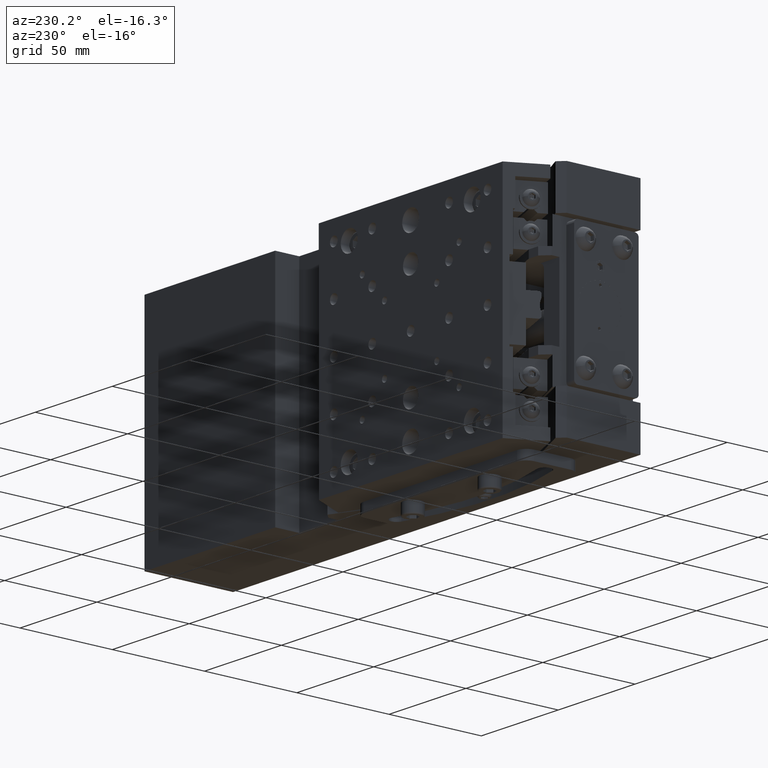
[diagram: clean part render]
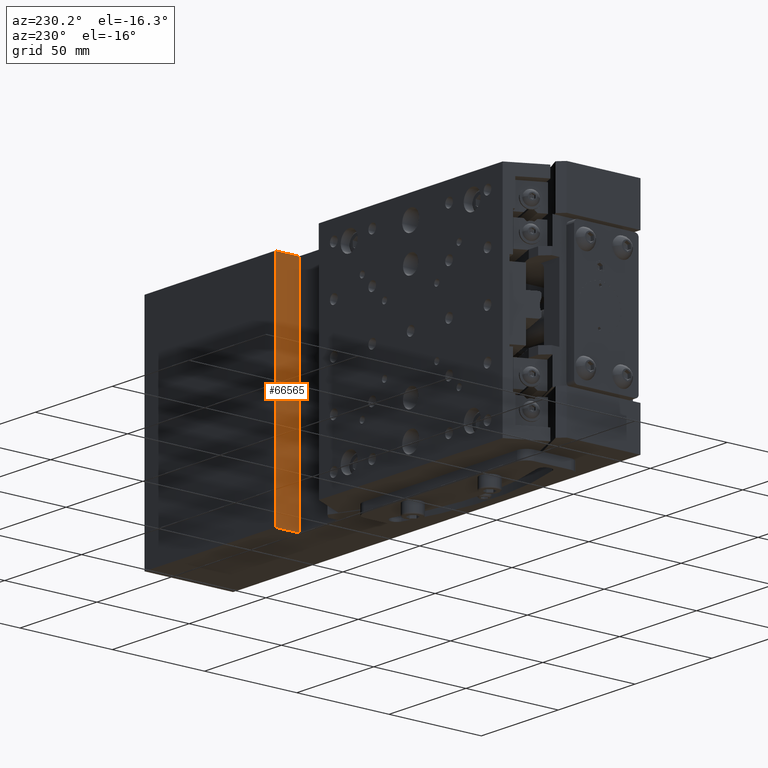
[diagram: same view with one face highlighted and labeled with its STEP entity id]
A machine part, auxiliary view. The second image highlights one B-rep face of the part: STEP entity #66565.
In plain terms, the highlighted planar face has unit normal (1, 0, 0).
Its self-contained STEP definition (entity closure, byte-faithful):
#514 = ORIENTED_EDGE ( 'NONE', *, *, #52231, .T. ) ;
#7272 = VERTEX_POINT ( 'NONE', #55581 ) ;
#15604 = VERTEX_POINT ( 'NONE', #54030 ) ;
#23413 = DIRECTION ( 'NONE',  ( 0.000000000000000000, 1.000000000000000000, 0.000000000000000000 ) ) ;
#26450 = CARTESIAN_POINT ( 'NONE',  ( 8.145701637483439228, 16.89383770330145040, -54.50124999999999886 ) ) ;
#26638 = LINE ( 'NONE', #79858, #84459 ) ;
#27875 = ORIENTED_EDGE ( 'NONE', *, *, #62194, .T. ) ;
#30510 = FACE_OUTER_BOUND ( 'NONE', #73304, .T. ) ;
#37195 = ORIENTED_EDGE ( 'NONE', *, *, #52440, .F. ) ;
#38251 = DIRECTION ( 'NONE',  ( 1.000000000000000000, 0.000000000000000000, 1.261617073437677999E-16 ) ) ;
#52231 = EDGE_CURVE ( 'NONE', #15604, #68671, #55946, .T. ) ;
#52440 = EDGE_CURVE ( 'NONE', #7272, #68671, #100848, .T. ) ;
#54030 = CARTESIAN_POINT ( 'NONE',  ( 8.145701637483430346, 16.89383770330145040, 65.49875000000000114 ) ) ;
#55000 = VERTEX_POINT ( 'NONE', #57656 ) ;
#55581 = CARTESIAN_POINT ( 'NONE',  ( 8.145701637483439228, 29.89383770330144685, -54.50124999999999886 ) ) ;
#55946 = LINE ( 'NONE', #94191, #74868 ) ;
#56694 = VECTOR ( 'NONE', #94579, 1000.000000000000000 ) ;
#57656 = CARTESIAN_POINT ( 'NONE',  ( 8.145701637483439228, 16.89383770330145040, -54.50124999999999886 ) ) ;
#57939 = LINE ( 'NONE', #26450, #74246 ) ;
#61502 = PLANE ( 'NONE',  #92711 ) ;
#62194 = EDGE_CURVE ( 'NONE', #55000, #15604, #57939, .T. ) ;
#64612 = EDGE_CURVE ( 'NONE', #55000, #7272, #26638, .T. ) ;
#66565 = ADVANCED_FACE ( 'NONE', ( #30510 ), #61502, .F. ) ;
#68671 = VERTEX_POINT ( 'NONE', #78771 ) ;
#69689 = ORIENTED_EDGE ( 'NONE', *, *, #64612, .F. ) ;
#69747 = DIRECTION ( 'NONE',  ( -1.261617073437677999E-16, 0.000000000000000000, 1.000000000000000000 ) ) ;
#69837 = CARTESIAN_POINT ( 'NONE',  ( 8.145701637483439228, 29.89383770330144685, -54.50124999999999886 ) ) ;
#72636 = DIRECTION ( 'NONE',  ( 0.000000000000000000, 1.000000000000000000, 0.000000000000000000 ) ) ;
#73304 = EDGE_LOOP ( 'NONE', ( #514, #37195, #69689, #27875 ) ) ;
#74246 = VECTOR ( 'NONE', #89444, 1000.000000000000000 ) ;
#74868 = VECTOR ( 'NONE', #23413, 1000.000000000000000 ) ;
#78771 = CARTESIAN_POINT ( 'NONE',  ( 8.145701637483430346, 29.89383770330144685, 65.49875000000000114 ) ) ;
#79858 = CARTESIAN_POINT ( 'NONE',  ( 8.145701637483439228, 29.89383770330144685, -54.50124999999999886 ) ) ;
#84459 = VECTOR ( 'NONE', #72636, 1000.000000000000000 ) ;
#89444 = DIRECTION ( 'NONE',  ( -1.261617073437677999E-16, 0.000000000000000000, 1.000000000000000000 ) ) ;
#92711 = AXIS2_PLACEMENT_3D ( 'NONE', #92973, #38251, #69747 ) ;
#92973 = CARTESIAN_POINT ( 'NONE',  ( 8.145701637483439228, 29.89383770330144685, -54.50124999999999886 ) ) ;
#94191 = CARTESIAN_POINT ( 'NONE',  ( 8.145701637483430346, 29.89383770330144685, 65.49875000000000114 ) ) ;
#94579 = DIRECTION ( 'NONE',  ( -1.261617073437677999E-16, 0.000000000000000000, 1.000000000000000000 ) ) ;
#100848 = LINE ( 'NONE', #69837, #56694 ) ;